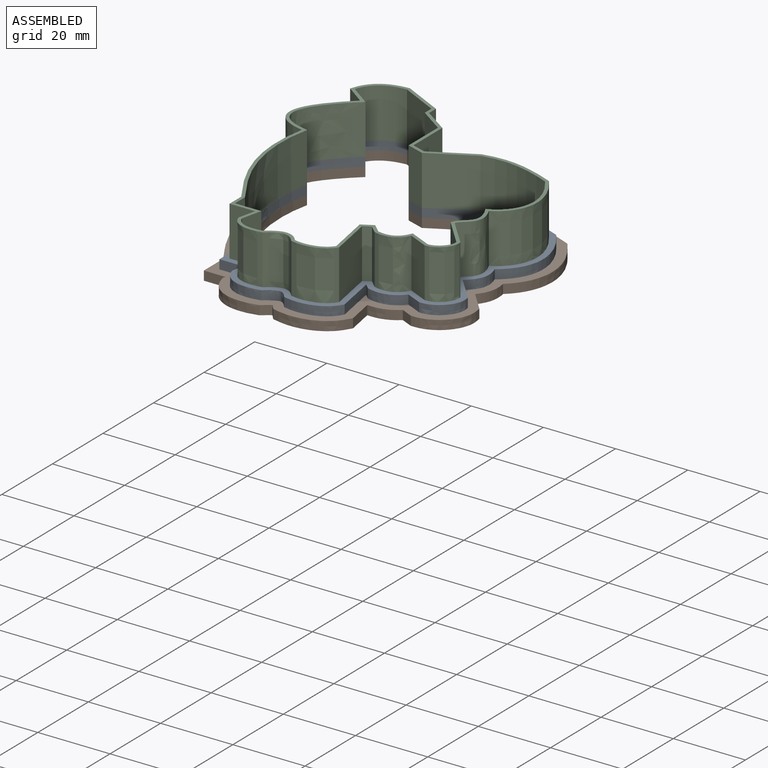
[diagram: assembled view]
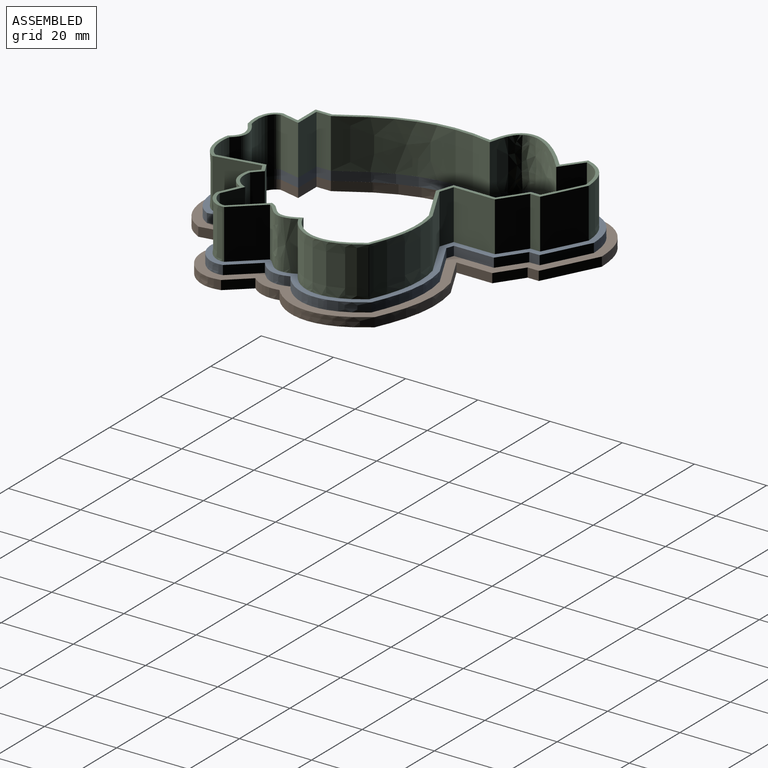
[diagram: assembled view, second angle]
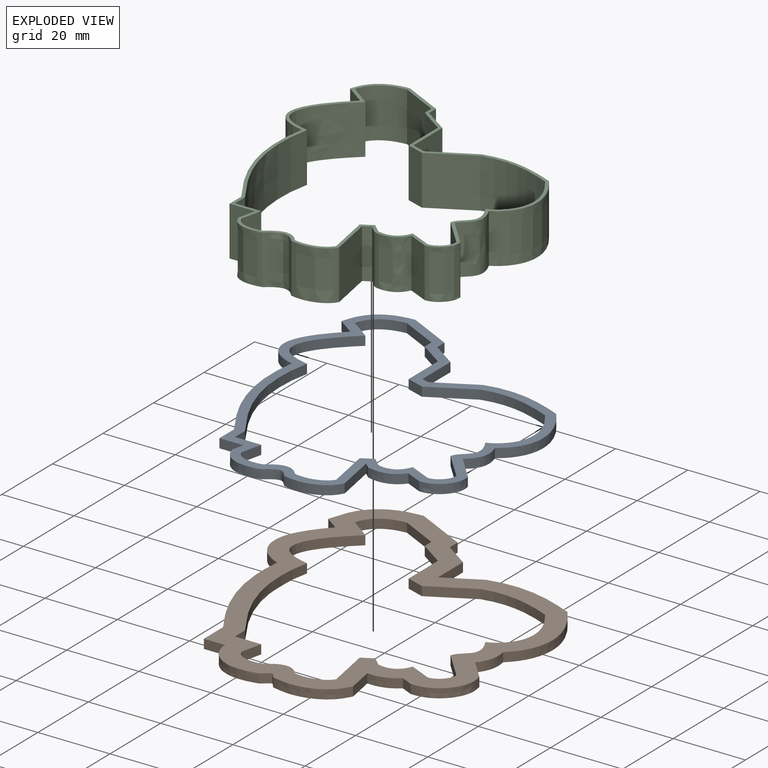
[diagram: exploded view]
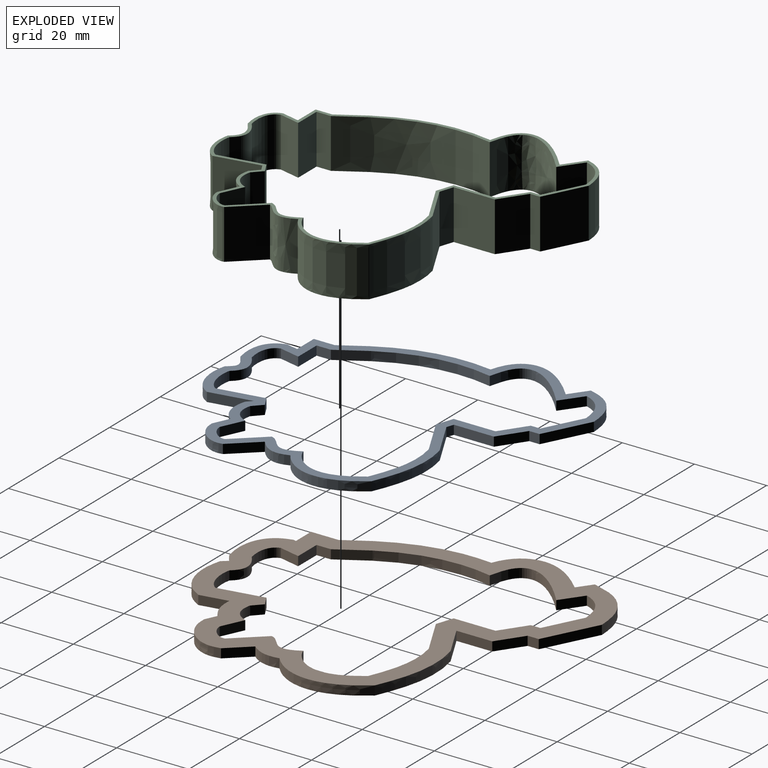
[diagram: exploded view, second angle]
ASSEMBLY  parts=3 mates=2
PART A: 53 faces, bbox 81.1x88.6x4.9 mm
  f0: plane 88.64x81.06mm, normal (0,0,1), area 768.6mm2, adj f2,f3,f4,f5,f6,f7,f8,f9
  f1: plane 88.64x81.06mm, normal (0,0,-1), area 768.6mm2, adj f2,f3,f4,f5,f6,f7,f8,f9
  f2: plane 11.13x5.94mm, normal (-0.47,0.88,0), area 32mm2, adj f0,f1,f3,f26
  f3: plane 2.54x2.01mm, normal (0.31,0.95,0), area 5.4mm2, adj f0,f1,f2,f4
  f4: plane 11.08x2.54mm, normal (1,0,0), area 28.1mm2, adj f0,f1,f3,f5
  f5: plane 7.06x4.85mm, normal (0.57,0.82,0), area 21.8mm2, adj f0,f1,f4,f6
  f6: plane 2.87x2.54mm, normal (1,0,0), area 7.3mm2, adj f0,f1,f5,f7
  f7: plane 12.49x6.31mm, normal (0.45,0.89,0), area 35.5mm2, adj f0,f1,f6,f8
  f8: extruded ~13.33x10.17mm, area 46.6mm2, adj f0,f1,f7,f9
  f9: plane 4.9x3.54mm, normal (-0.59,-0.81,0), area 15.3mm2, adj f0,f1,f8,f10
  f10: extruded ~21.61x8.79mm, area 72.8mm2, adj f0,f1,f9,f11
  f11: extruded ~36.45x10.16mm, area 98.3mm2, adj f0,f1,f10,f12
  f12: plane 5.8x2.54mm, normal (-1,0,0), area 14.7mm2, adj f0,f1,f11,f13
  f13: plane 6.63x2.54mm, normal (0,-1,0), area 16.8mm2, adj f0,f1,f12,f14
  f14: plane 3.26x2.54mm, normal (-0.97,0.22,0), area 8.5mm2, adj f0,f1,f13,f15
  f15: extruded ~11.47x5.42mm, area 35.5mm2, adj f0,f1,f14,f16
  f16: extruded ~6.27x2.54mm, area 19.5mm2, adj f0,f1,f15,f17
  f17: extruded ~13.58x5.07mm, area 38.7mm2, adj f0,f1,f16,f18
  f18: plane 11.53x2.54mm, normal (0.98,0.18,0), area 29.8mm2, adj f0,f1,f17,f19
  f19: plane 2.54x1.5mm, normal (-0.68,-0.73,0), area 5.2mm2, adj f0,f1,f18,f20
  f20: extruded ~9.38x3.07mm, area 26.5mm2, adj f0,f1,f19,f21
  f21: plane 4.42x2.54mm, normal (-0.42,-0.91,0), area 12.4mm2, adj f0,f1,f20,f22
  f22: extruded ~8.36x7.8mm, area 32.4mm2, adj f0,f1,f21,f23
  f23: plane 7.13x6.43mm, normal (0.74,0.67,0), area 24.4mm2, adj f0,f1,f22,f24
  f24: extruded ~8.93x3.33mm, area 25.9mm2, adj f0,f1,f23,f25
  f25: extruded ~23.03x5.95mm, area 67mm2, adj f0,f1,f24,f26
  f26: extruded ~22.47x4.01mm, area 58.8mm2, adj f0,f1,f2,f25
  f27: plane 11.8x6.3mm, normal (0.47,-0.88,0), area 34mm2, adj f0,f1,f28,f52
  f28: plane 4.78x2.54mm, normal (-0.31,-0.95,0), area 12.8mm2, adj f0,f1,f27,f29
  f29: plane 11.58x2.54mm, normal (-1,0,0), area 29.4mm2, adj f0,f1,f28,f30
  f30: plane 7.06x4.85mm, normal (-0.57,-0.82,0), area 21.8mm2, adj f0,f1,f29,f31
  f31: plane 2.65x2.54mm, normal (-1,0,0), area 6.7mm2, adj f0,f1,f30,f32
  f32: plane 10.48x5.29mm, normal (-0.45,-0.89,0), area 29.8mm2, adj f0,f1,f31,f33
  f33: extruded ~9.82x6.62mm, area 32.3mm2, adj f0,f1,f32,f34
  f34: plane 5.96x4.3mm, normal (0.59,0.81,0), area 18.7mm2, adj f0,f1,f33,f35
  f35: extruded ~19.96x10.3mm, area 72.9mm2, adj f0,f1,f34,f36
  f36: extruded ~37.61x10.16mm, area 101.4mm2, adj f0,f1,f35,f37
  f37: plane 3.97x2.54mm, normal (1,0,0), area 10.1mm2, adj f0,f1,f36,f38
  f38: plane 7.28x2.54mm, normal (0,1,0), area 18.5mm2, adj f0,f1,f37,f39
  f39: plane 5.73x2.54mm, normal (0.97,-0.22,0), area 14.9mm2, adj f0,f1,f38,f40
  f40: extruded ~7.72x2.95mm, area 22.9mm2, adj f0,f1,f39,f41
  f41: extruded ~8.82x2.54mm, area 25.8mm2, adj f0,f1,f40,f42
  f42: extruded ~9.48x3.03mm, area 26.5mm2, adj f0,f1,f41,f43
  f43: plane 12.55x2.54mm, normal (-0.98,-0.18,0), area 32.4mm2, adj f0,f1,f42,f44
  f44: plane 3.12x2.54mm, normal (-0.48,0.88,0), area 9mm2, adj f0,f1,f43,f45
  f45: plane 2.54x2.5mm, normal (0.68,0.73,0), area 8.7mm2, adj f0,f1,f44,f46
  f46: extruded ~7.02x3.84mm, area 22.4mm2, adj f0,f1,f45,f47
  f47: plane 6.08x2.81mm, normal (0.42,0.91,0), area 17mm2, adj f0,f1,f46,f48
  f48: extruded ~4.71x4.68mm, area 18.6mm2, adj f0,f1,f47,f49
  f49: plane 7.95x7.17mm, normal (-0.74,-0.67,0), area 27.2mm2, adj f0,f1,f48,f50
  f50: extruded ~10.45x3.93mm, area 30.9mm2, adj f0,f1,f49,f51
  f51: extruded ~19.75x6.85mm, area 60.4mm2, adj f0,f1,f50,f52
  f52: extruded ~19.94x3.55mm, area 52.1mm2, adj f0,f1,f27,f51
PART B: 52 faces, bbox 83.4x92.3x3.4 mm
  f0: plane 92.26x83.41mm, normal (0,0,1), area 1555.4mm2, adj f2,f3,f4,f5,f6,f7,f8,f9
  f1: plane 92.26x83.41mm, normal (0,0,-1), area 1555.4mm2, adj f2,f3,f4,f5,f6,f7,f8,f9
  f2: extruded ~2.54x2.41mm, area 7.5mm2, adj f0,f1,f15,f16
  f3: plane 9.69x5.17mm, normal (-0.47,0.88,0), area 27.9mm2, adj f0,f1,f4,f25
  f4: plane 9.92x2.54mm, normal (1,0,0), area 25.2mm2, adj f0,f1,f3,f5
  f5: plane 7.06x4.85mm, normal (0.57,0.82,0), area 21.8mm2, adj f0,f1,f4,f6
  f6: plane 3.1x2.54mm, normal (1,0,0), area 7.9mm2, adj f0,f1,f5,f7
  f7: plane 14.5x7.33mm, normal (0.45,0.89,0), area 41.3mm2, adj f0,f1,f6,f8
  f8: extruded ~16.85x13.72mm, area 59.7mm2, adj f0,f1,f7,f9
  f9: plane 3.94x2.85mm, normal (-0.59,-0.81,0), area 12.4mm2, adj f0,f1,f8,f10
  f10: extruded ~23.07x7.42mm, area 72.9mm2, adj f0,f1,f9,f11
  f11: extruded ~35.43x10.16mm, area 95.5mm2, adj f0,f1,f10,f12
  f12: plane 7.62x2.54mm, normal (-1,0,0), area 19.4mm2, adj f0,f1,f11,f13
  f13: plane 5.97x2.54mm, normal (0,-1,0), area 15.2mm2, adj f0,f1,f12,f14
  f14: plane 2.54x0.79mm, normal (-0.97,0.22,0), area 2.1mm2, adj f0,f1,f13,f15
  f15: extruded ~15.22x7.89mm, area 47.8mm2, adj f0,f1,f2,f14
  f16: extruded ~2.54x1.6mm, area 5.3mm2, adj f0,f1,f2,f17
  f17: extruded ~17.68x7.1mm, area 51.1mm2, adj f0,f1,f16,f18
  f18: plane 7.67x2.54mm, normal (0.98,0.18,0), area 19.8mm2, adj f0,f1,f17,f19
  f19: extruded ~8.12x2.54mm, area 22.2mm2, adj f0,f1,f18,f20
  f20: plane 3.24x2.54mm, normal (-0.42,-0.91,0), area 9.1mm2, adj f0,f1,f19,f21
  f21: extruded ~12.03x10.9mm, area 46.4mm2, adj f0,f1,f20,f22
  f22: plane 5.85x5.28mm, normal (0.74,0.67,0), area 20mm2, adj f0,f1,f21,f23
  f23: extruded ~8.11x2.54mm, area 22.2mm2, adj f0,f1,f22,f24
  f24: extruded ~26.07x5.97mm, area 74.3mm2, adj f0,f1,f23,f25
  f25: extruded ~25x4.48mm, area 65.3mm2, adj f0,f1,f3,f24
  f26: plane 11.8x6.3mm, normal (0.47,-0.88,0), area 34mm2, adj f0,f1,f27,f51
  f27: plane 4.78x2.54mm, normal (-0.31,-0.95,0), area 12.8mm2, adj f0,f1,f26,f28
  f28: plane 11.58x2.54mm, normal (-1,0,0), area 29.4mm2, adj f0,f1,f27,f29
  f29: plane 7.06x4.85mm, normal (-0.57,-0.82,0), area 21.8mm2, adj f0,f1,f28,f30
  f30: plane 2.65x2.54mm, normal (-1,0,0), area 6.7mm2, adj f0,f1,f29,f31
  f31: plane 10.48x5.29mm, normal (-0.45,-0.89,0), area 29.8mm2, adj f0,f1,f30,f32
  f32: extruded ~9.82x6.62mm, area 32.3mm2, adj f0,f1,f31,f33
  f33: plane 5.96x4.3mm, normal (0.59,0.81,0), area 18.7mm2, adj f0,f1,f32,f34
  f34: extruded ~19.96x10.3mm, area 72.9mm2, adj f0,f1,f33,f35
  f35: extruded ~37.61x10.16mm, area 101.4mm2, adj f0,f1,f34,f36
  f36: plane 3.97x2.54mm, normal (1,0,0), area 10.1mm2, adj f0,f1,f35,f37
  f37: plane 7.28x2.54mm, normal (0,1,0), area 18.5mm2, adj f0,f1,f36,f38
  f38: plane 5.73x2.54mm, normal (0.97,-0.22,0), area 14.9mm2, adj f0,f1,f37,f39
  f39: extruded ~7.72x2.95mm, area 22.9mm2, adj f0,f1,f38,f40
  f40: extruded ~8.82x2.54mm, area 25.8mm2, adj f0,f1,f39,f41
  f41: extruded ~9.48x3.03mm, area 26.5mm2, adj f0,f1,f40,f42
  f42: plane 12.55x2.54mm, normal (-0.98,-0.18,0), area 32.4mm2, adj f0,f1,f41,f43
  f43: plane 3.12x2.54mm, normal (-0.48,0.88,0), area 9mm2, adj f0,f1,f42,f44
  f44: plane 2.54x2.5mm, normal (0.68,0.73,0), area 8.7mm2, adj f0,f1,f43,f45
  f45: extruded ~7.02x3.84mm, area 22.4mm2, adj f0,f1,f44,f46
  f46: plane 6.08x2.81mm, normal (0.42,0.91,0), area 17mm2, adj f0,f1,f45,f47
  f47: extruded ~4.71x4.68mm, area 18.6mm2, adj f0,f1,f46,f48
  f48: plane 7.95x7.17mm, normal (-0.74,-0.67,0), area 27.2mm2, adj f0,f1,f47,f49
  f49: extruded ~10.45x3.93mm, area 30.9mm2, adj f0,f1,f48,f50
  f50: extruded ~19.75x6.85mm, area 60.4mm2, adj f0,f1,f49,f51
  f51: extruded ~19.94x3.55mm, area 52.1mm2, adj f0,f1,f26,f50
PART C: 54 faces, bbox 79.2x83.9x14.7 mm
  f0: plane 83.93x79.21mm, normal (0,0,1), area 266.3mm2, adj f2,f3,f4,f5,f6,f7,f8,f9
  f1: plane 83.93x79.21mm, normal (0,0,-1), area 266.3mm2, adj f2,f3,f4,f5,f6,f7,f8,f9
  f2: plane 13.72x11.57mm, normal (-0.47,0.88,0), area 179.8mm2, adj f0,f1,f3,f27
  f3: plane 13.72x3.81mm, normal (0.31,0.95,0), area 55.1mm2, adj f0,f1,f2,f4
  f4: plane 13.72x11.4mm, normal (1,0,0), area 156.4mm2, adj f0,f1,f3,f5
  f5: plane 13.72x7.06mm, normal (0.57,0.82,0), area 117.5mm2, adj f0,f1,f4,f6
  f6: plane 13.72x2.73mm, normal (1,0,0), area 37.4mm2, adj f0,f1,f5,f7
  f7: plane 13.72x11.18mm, normal (0.45,0.89,0), area 171.8mm2, adj f0,f1,f6,f8
  f8: extruded ~13.72x11.05mm, area 200.8mm2, adj f0,f1,f7,f9
  f9: plane 13.72x5.57mm, normal (-0.59,-0.81,0), area 94.3mm2, adj f0,f1,f8,f10
  f10: extruded ~20.54x13.72mm, area 393.2mm2, adj f0,f1,f9,f11
  f11: extruded ~37.21x13.72mm, area 541.6mm2, adj f0,f1,f10,f12
  f12: plane 13.72x4.61mm, normal (-1,0,0), area 63.3mm2, adj f0,f1,f11,f13
  f13: plane 13.72x7.05mm, normal (0,-1,0), area 96.7mm2, adj f0,f1,f12,f14
  f14: plane 13.72x4.87mm, normal (-0.97,0.22,0), area 68.5mm2, adj f0,f1,f13,f15
  f15: extruded ~13.72x9.03mm, area 147.6mm2, adj f0,f1,f14,f16
  f16: extruded ~13.72x7.93mm, area 127.6mm2, adj f0,f1,f15,f17
  f17: extruded ~13.72x10.92mm, area 167.1mm2, adj f0,f1,f16,f18
  f18: plane 13.72x12.26mm, normal (0.98,0.18,0), area 170.9mm2, adj f0,f1,f17,f19
  f19: plane 13.72x1.99mm, normal (0.48,-0.88,0), area 31.2mm2, adj f0,f1,f18,f20
  f20: plane 13.72x2.19mm, normal (-0.68,-0.73,0), area 41.2mm2, adj f0,f1,f19,f21
  f21: extruded ~13.72x7.92mm, area 128.5mm2, adj f0,f1,f20,f22
  f22: plane 13.72x5.43mm, normal (-0.42,-0.91,0), area 82mm2, adj f0,f1,f21,f23
  f23: extruded ~13.72x5.97mm, area 127.5mm2, adj f0,f1,f22,f24
  f24: plane 13.72x7.77mm, normal (0.74,0.67,0), area 143.6mm2, adj f0,f1,f23,f25
  f25: extruded ~13.72x9.73mm, area 155.1mm2, adj f0,f1,f24,f26
  f26: extruded ~20.98x13.72mm, area 337.5mm2, adj f0,f1,f25,f27
  f27: extruded ~20.82x13.72mm, area 294mm2, adj f0,f1,f2,f26
  f28: plane 13.72x11.8mm, normal (0.47,-0.88,0), area 183.5mm2, adj f0,f1,f29,f53
  f29: plane 13.72x4.78mm, normal (-0.31,-0.95,0), area 69.1mm2, adj f0,f1,f28,f30
  f30: plane 13.72x11.58mm, normal (-1,0,0), area 158.8mm2, adj f0,f1,f29,f31
  f31: plane 13.72x7.06mm, normal (-0.57,-0.82,0), area 117.5mm2, adj f0,f1,f30,f32
  f32: plane 13.72x2.65mm, normal (-1,0,0), area 36.3mm2, adj f0,f1,f31,f33
  f33: plane 13.72x10.48mm, normal (-0.45,-0.89,0), area 161mm2, adj f0,f1,f32,f34
  f34: extruded ~13.72x9.82mm, area 174.2mm2, adj f0,f1,f33,f35
  f35: plane 13.72x5.96mm, normal (0.59,0.81,0), area 100.8mm2, adj f0,f1,f34,f36
  f36: extruded ~19.96x13.72mm, area 393.7mm2, adj f0,f1,f35,f37
  f37: extruded ~37.61x13.72mm, area 547.4mm2, adj f0,f1,f36,f38
  f38: plane 13.72x3.97mm, normal (1,0,0), area 54.5mm2, adj f0,f1,f37,f39
  f39: plane 13.72x7.28mm, normal (0,1,0), area 99.8mm2, adj f0,f1,f38,f40
  f40: plane 13.72x5.73mm, normal (0.97,-0.22,0), area 80.7mm2, adj f0,f1,f39,f41
  f41: extruded ~13.72x7.72mm, area 123.5mm2, adj f0,f1,f40,f42
  f42: extruded ~13.72x8.82mm, area 139.5mm2, adj f0,f1,f41,f43
  f43: extruded ~13.72x9.48mm, area 143.1mm2, adj f0,f1,f42,f44
  f44: plane 13.72x12.55mm, normal (-0.98,-0.18,0), area 175mm2, adj f0,f1,f43,f45
  f45: plane 13.72x3.12mm, normal (-0.48,0.88,0), area 48.8mm2, adj f0,f1,f44,f46
  f46: plane 13.72x2.5mm, normal (0.68,0.73,0), area 46.9mm2, adj f0,f1,f45,f47
  f47: extruded ~13.72x7.02mm, area 120.8mm2, adj f0,f1,f46,f48
  f48: plane 13.72x6.08mm, normal (0.42,0.91,0), area 91.9mm2, adj f0,f1,f47,f49
  f49: extruded ~13.72x4.71mm, area 100.3mm2, adj f0,f1,f48,f50
  f50: plane 13.72x7.95mm, normal (-0.74,-0.67,0), area 146.9mm2, adj f0,f1,f49,f51
  f51: extruded ~13.72x10.45mm, area 166.9mm2, adj f0,f1,f50,f52
  f52: extruded ~19.75x13.72mm, area 326mm2, adj f0,f1,f51,f53
  f53: extruded ~19.94x13.72mm, area 281.5mm2, adj f0,f1,f28,f52
PLACE A t=(189.63,-22.34,2.54)mm
PLACE B at identity
PLACE C t=(96.84,-7.27,5.08)mm
MATE fastened A.f1 <-> B.f0  axis (0,0,1) through (63.36,1.7,2.54)mm
MATE fastened C.f1 <-> A.f0  axis (0,0,1) through (63.36,1.7,5.08)mm
